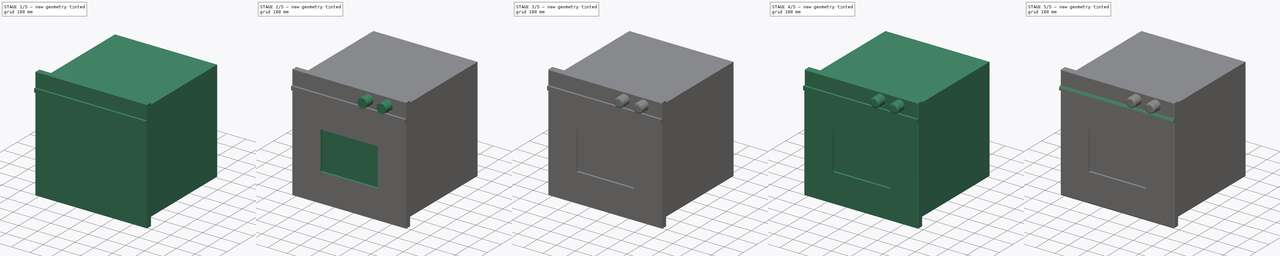
[diagram: build sequence overview — one tinted view per stage of 5, left to right]
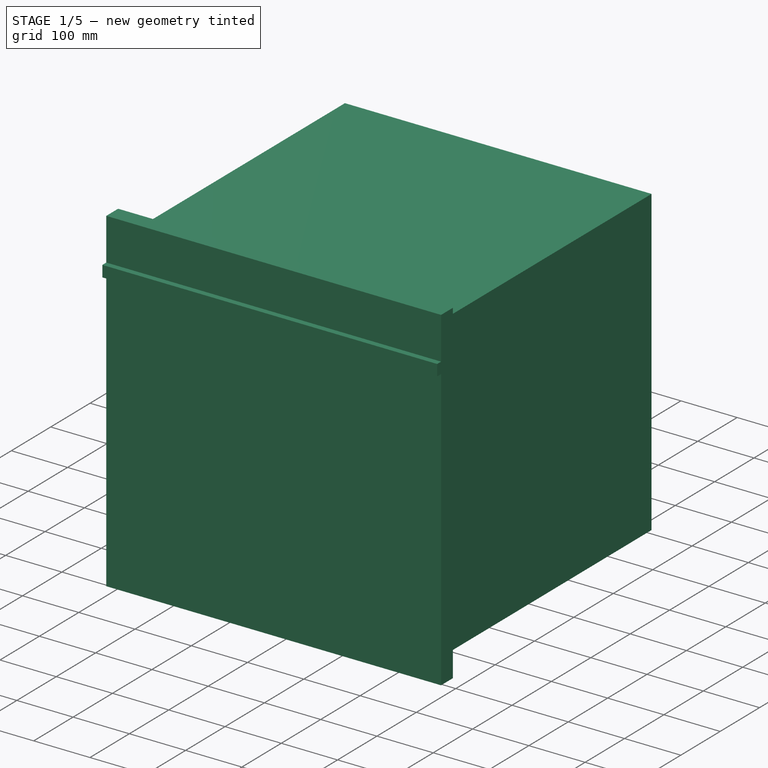
[diagram: stage 1 of 5 — iso view after this stage's code; geometry added in this stage tinted green]
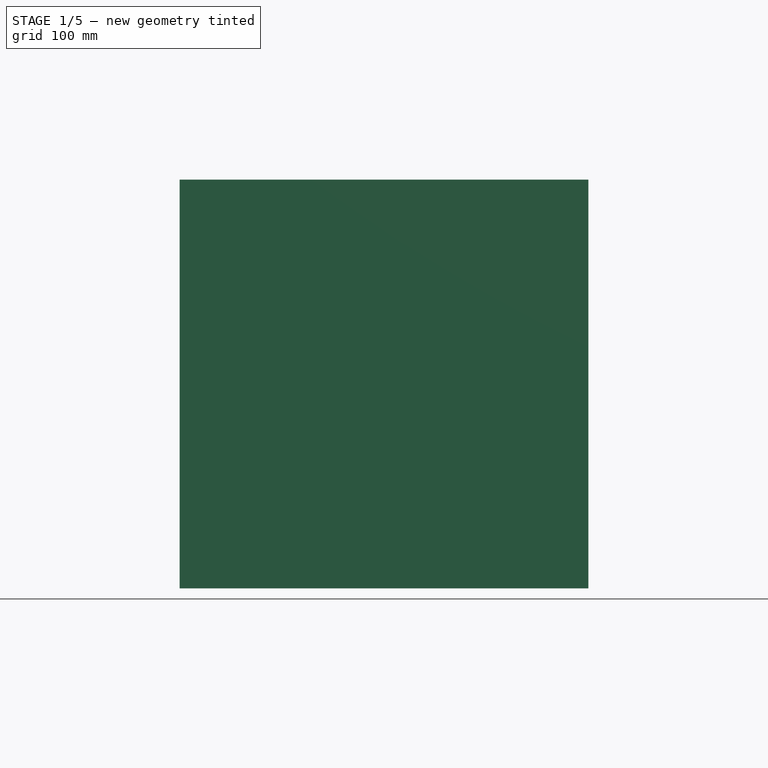
[diagram: stage 1 of 5 — front view after this stage's code; geometry added in this stage tinted green]
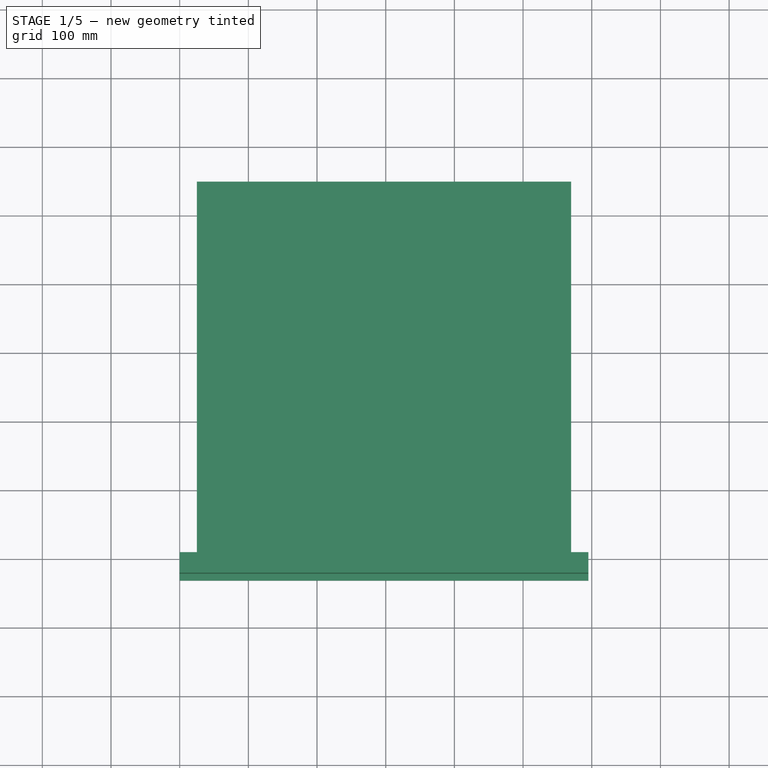
[diagram: stage 1 of 5 — top view after this stage's code; geometry added in this stage tinted green]
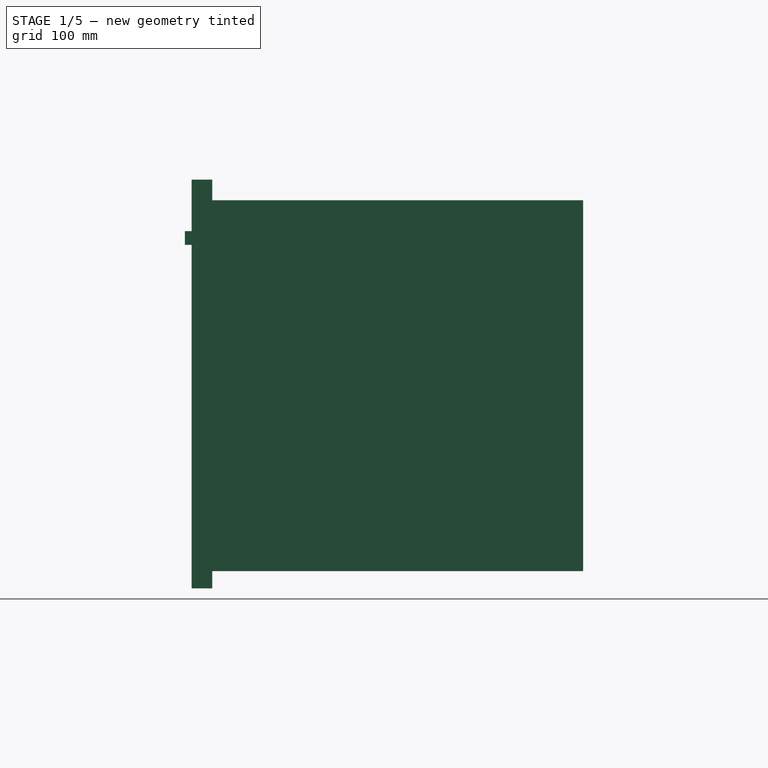
[diagram: stage 1 of 5 — right view after this stage's code; geometry added in this stage tinted green]
FCSTD DOCUMENT  (FreeCAD 0.18R16131 (Git))
Label: Oven_builtIn
License: All rights reserved
LicenseURL: http://en.wikipedia.org/wiki/All_rights_reserved
objects: PartDesign::Fillet×8, Sketcher::SketchObject×6, PartDesign::Pad×5, PartDesign::Pocket×1, PartDesign::Chamfer×1, PartDesign::Body×1
note: 28 computed .brp shape members not serialized (recipe doc carries the construction recipe); baked Part::Feature solids carry a one-line shape summary decoded from their .brp

FEATURE [Sketcher::SketchObject] Sketch
  MapMode = 5
  Placement = pos=(0,0,0) rot=(1,0,0;1.5708rad)
  Support = -> [XZ_Plane]
  sketch-geometry (4):
    g0: LineSegment StartX=0 StartY=0 StartZ=0 EndX=595 EndY=0 EndZ=0
    g1: LineSegment StartX=595 StartY=0 StartZ=0 EndX=595 EndY=595 EndZ=0
    g2: LineSegment StartX=595 StartY=595 StartZ=0 EndX=0 EndY=595 EndZ=0
    g3: LineSegment StartX=0 StartY=595 StartZ=0 EndX=0 EndY=0 EndZ=0
  constraints (11):
    c: Coincident(g0,g1)
    c: Coincident(g1,g2)
    c: Coincident(g2,g3)
    c: Coincident(g3,g0)
    c: Horizontal(g0)
    c: Horizontal(g2)
    c: Vertical(g1)
    c: Vertical(g3)
    c: Coincident(g0,g-1)
    c: DistanceX(g2,g2) = 595
    c: Equal(g3,g2)
FEATURE [PartDesign::Pad] Pad
  Length = 30
  Length2 = 100
  Placement = pos=(0,0,0) rot=(1,0,0;1.5708rad)
  Profile = -> Sketch
  Type = 0
FEATURE [Sketcher::SketchObject] Sketch001
  MapMode = 5
  Placement = pos=(0,6e-16,0) rot=(-1,0,0;1.5708rad)
  Support = -> [Pad]
  sketch-geometry (4):
    g0: LineSegment StartX=25 StartY=-25 StartZ=0 EndX=570 EndY=-25 EndZ=0
    g1: LineSegment StartX=570 StartY=-25 StartZ=0 EndX=570 EndY=-565 EndZ=0
    g2: LineSegment StartX=570 StartY=-565 StartZ=0 EndX=25 EndY=-565 EndZ=0
    g3: LineSegment StartX=25 StartY=-565 StartZ=0 EndX=25 EndY=-25 EndZ=0
  constraints (12):
    c: Coincident(g0,g1)
    c: Coincident(g1,g2)
    c: Coincident(g2,g3)
    c: Coincident(g3,g0)
    c: Horizontal(g0)
    c: Horizontal(g2)
    c: Vertical(g1)
    c: Vertical(g3)
    c: DistanceX(g0,g0) = 545
    c: DistanceY(g3,g3) = 540
    c: DistanceX(g0) = 25
    c: DistanceY(g0) = -25
FEATURE [PartDesign::Pad] Pad001
  BaseFeature = -> Pad
  Length = 540
  Length2 = 100
  Placement = pos=(0,0,0) rot=(1,0,0;1.5708rad)
  Profile = -> Sketch001
  Type = 0
FEATURE [Sketcher::SketchObject] Sketch002
  MapMode = 5
  Placement = pos=(0,-30,1.33e-14) rot=(1,0,0;1.5708rad)
  Support = -> [Pad001]
  sketch-geometry (4):
    g0: LineSegment StartX=0 StartY=520 StartZ=0 EndX=595 EndY=520 EndZ=0
    g1: LineSegment StartX=595 StartY=520 StartZ=0 EndX=595 EndY=500 EndZ=0
    g2: LineSegment StartX=595 StartY=500 StartZ=0 EndX=0 EndY=500 EndZ=0
    g3: LineSegment StartX=0 StartY=500 StartZ=0 EndX=0 EndY=520 EndZ=0
  constraints (12):
    c: Coincident(g0,g1)
    c: Coincident(g1,g2)
    c: Coincident(g2,g3)
    c: Coincident(g3,g0)
    c: Horizontal(g0)
    c: Horizontal(g2)
    c: Vertical(g1)
    c: Vertical(g3)
    c: DistanceY(g3,g3) = 20
    c: DistanceX(g0,g0) = 595
    c: DistanceX(g2) = 0
    c: DistanceY(g2) = 500
FEATURE [PartDesign::Pad] Pad002
  BaseFeature = -> Pad001
  Length = 10
  Length2 = 100
  Placement = pos=(0,0,0) rot=(1,0,0;1.5708rad)
  Profile = -> Sketch002
  Type = 0
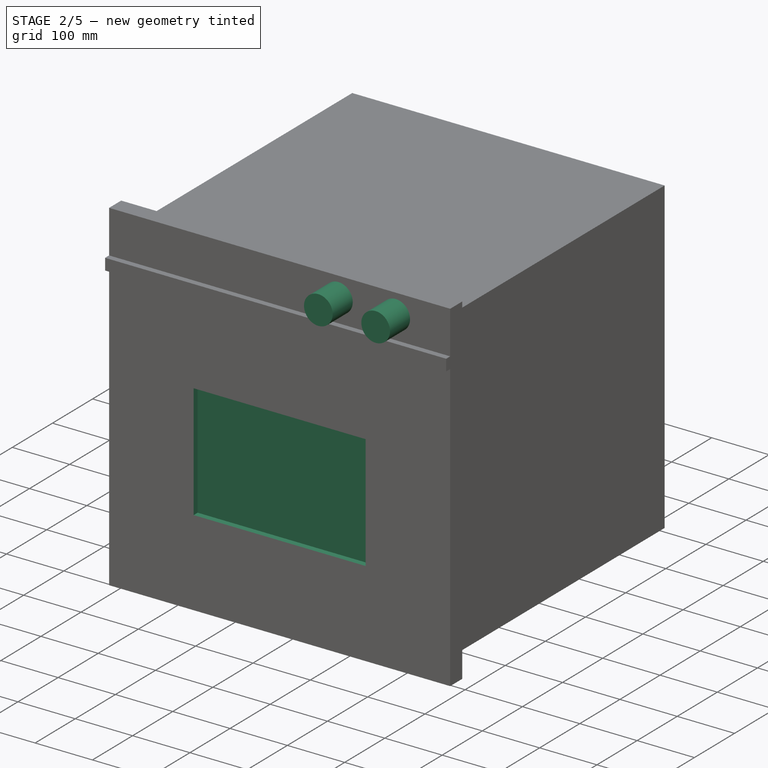
[diagram: stage 2 of 5 — iso view after this stage's code; geometry added in this stage tinted green]
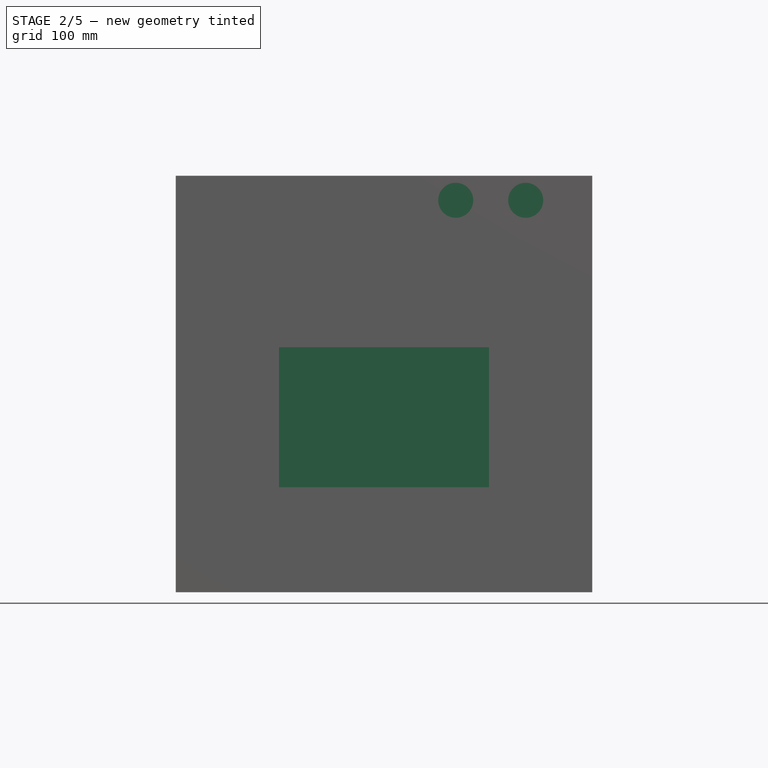
[diagram: stage 2 of 5 — front view after this stage's code; geometry added in this stage tinted green]
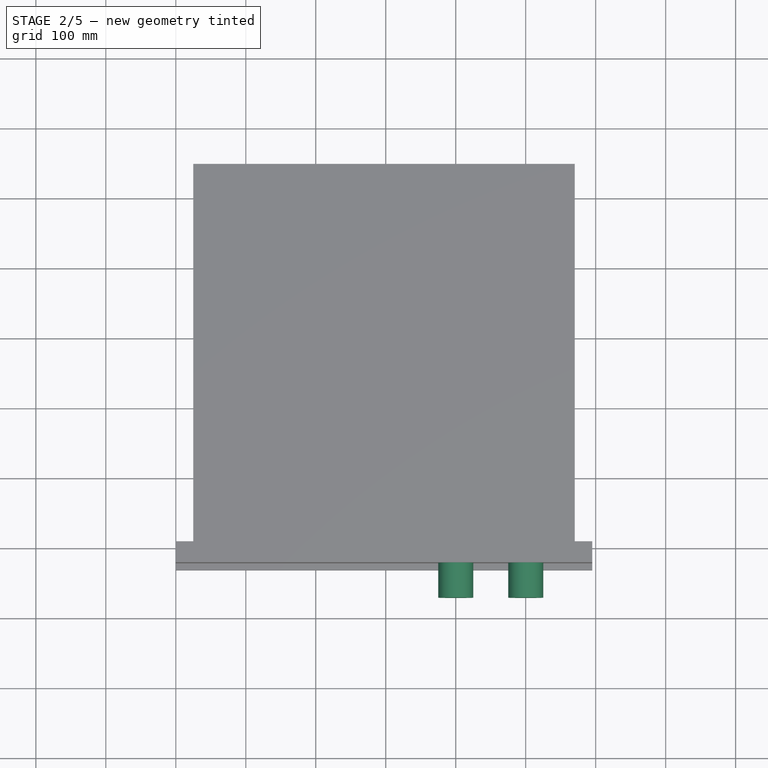
[diagram: stage 2 of 5 — top view after this stage's code; geometry added in this stage tinted green]
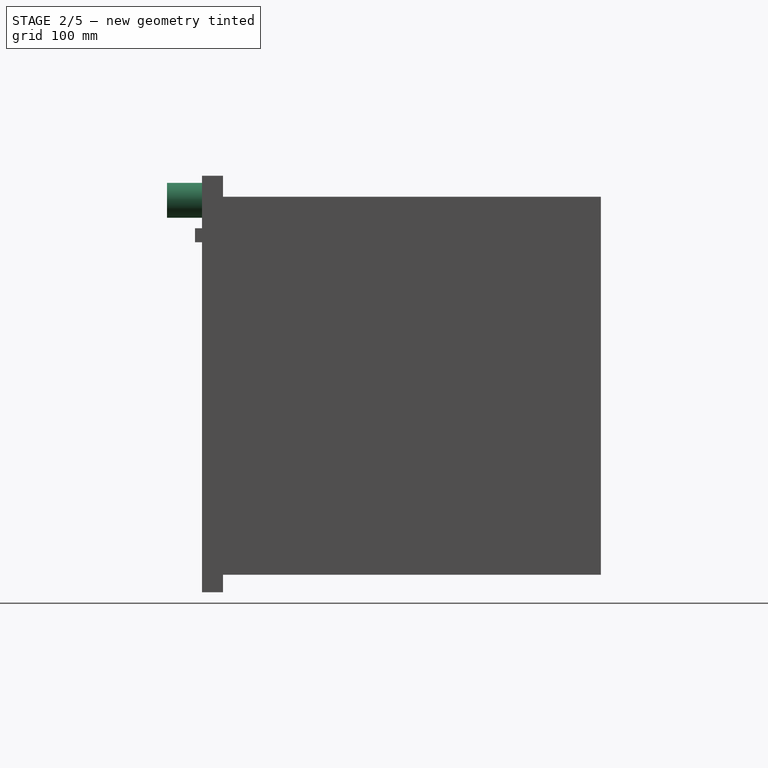
[diagram: stage 2 of 5 — right view after this stage's code; geometry added in this stage tinted green]
FEATURE [Sketcher::SketchObject] Sketch003
  MapMode = 5
  Placement = pos=(0,-30,1.33e-14) rot=(1,0,0;1.5708rad)
  Support = -> [Pad002]
  sketch-geometry (4):
    g0: LineSegment StartX=147.5 StartY=350 StartZ=0 EndX=447.5 EndY=350 EndZ=0
    g1: LineSegment StartX=447.5 StartY=350 StartZ=0 EndX=447.5 EndY=150 EndZ=0
    g2: LineSegment StartX=447.5 StartY=150 StartZ=0 EndX=147.5 EndY=150 EndZ=0
    g3: LineSegment StartX=147.5 StartY=150 StartZ=0 EndX=147.5 EndY=350 EndZ=0
  constraints (12):
    c: Coincident(g0,g1)
    c: Coincident(g1,g2)
    c: Coincident(g2,g3)
    c: Coincident(g3,g0)
    c: Horizontal(g0)
    c: Horizontal(g2)
    c: Vertical(g1)
    c: Vertical(g3)
    c: DistanceX(g2,g2) = 300
    c: DistanceY(g3,g3) = 200
    c: DistanceX(g2) = 147.5
    c: DistanceY(g2) = 150
FEATURE [PartDesign::Pocket] Pocket
  BaseFeature = -> Pad002
  Length = 10
  Length2 = 100
  Placement = pos=(0,0,0) rot=(1,0,0;1.5708rad)
  Profile = -> Sketch003
  Type = 0
FEATURE [Sketcher::SketchObject] Sketch004
  MapMode = 5
  Placement = pos=(0,-30,1.33e-14) rot=(1,0,0;1.5708rad)
  Support = -> [Pocket]
  sketch-geometry (1):
    g0: Circle CenterX=500 CenterY=560 CenterZ=0 NormalX=0 NormalY=0 NormalZ=1 AngleXU=0 Radius=25
  constraints (3):
    c: Radius(g0) = 25
    c: DistanceY(g0) = 560
    c: DistanceX(g0) = 500
FEATURE [PartDesign::Pad] Pad003
  BaseFeature = -> Pocket
  Length = 50
  Length2 = 100
  Placement = pos=(0,0,0) rot=(1,0,0;1.5708rad)
  Profile = -> Sketch004
  Type = 0
FEATURE [Sketcher::SketchObject] Sketch005
  MapMode = 5
  Placement = pos=(0,-30,1.33e-14) rot=(1,0,0;1.5708rad)
  Support = -> [Pad003]
  sketch-geometry (1):
    g0: Circle CenterX=400 CenterY=560 CenterZ=0 NormalX=0 NormalY=0 NormalZ=1 AngleXU=0 Radius=25
  constraints (3):
    c: Radius(g0) = 25
    c: DistanceY(g0) = 560
    c: DistanceX(g0) = 400
FEATURE [PartDesign::Pad] Pad004
  BaseFeature = -> Pad003
  Length = 50
  Length2 = 100
  Placement = pos=(0,0,0) rot=(1,0,0;1.5708rad)
  Profile = -> Sketch005
  Type = 0
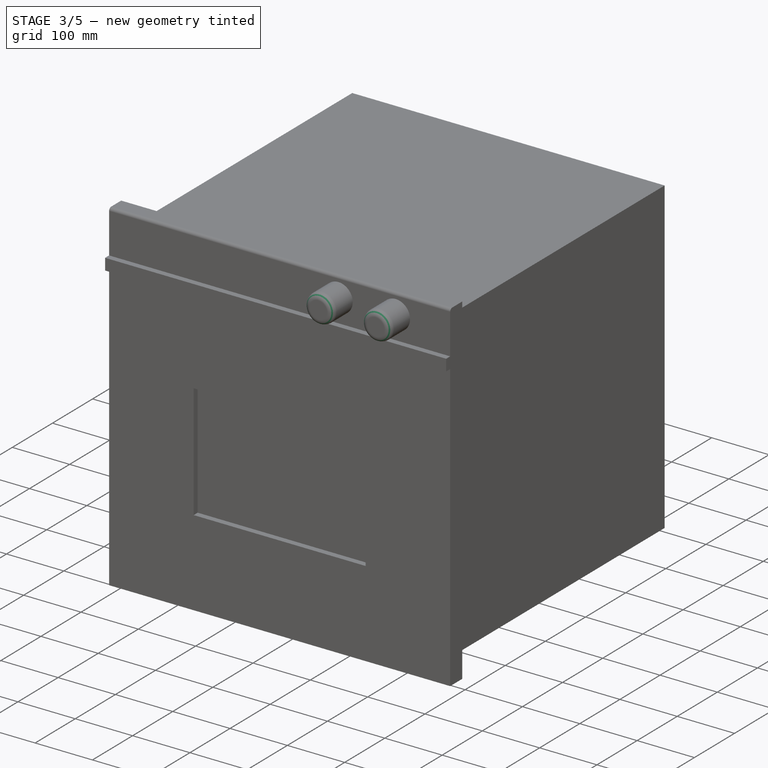
[diagram: stage 3 of 5 — iso view after this stage's code; geometry added in this stage tinted green]
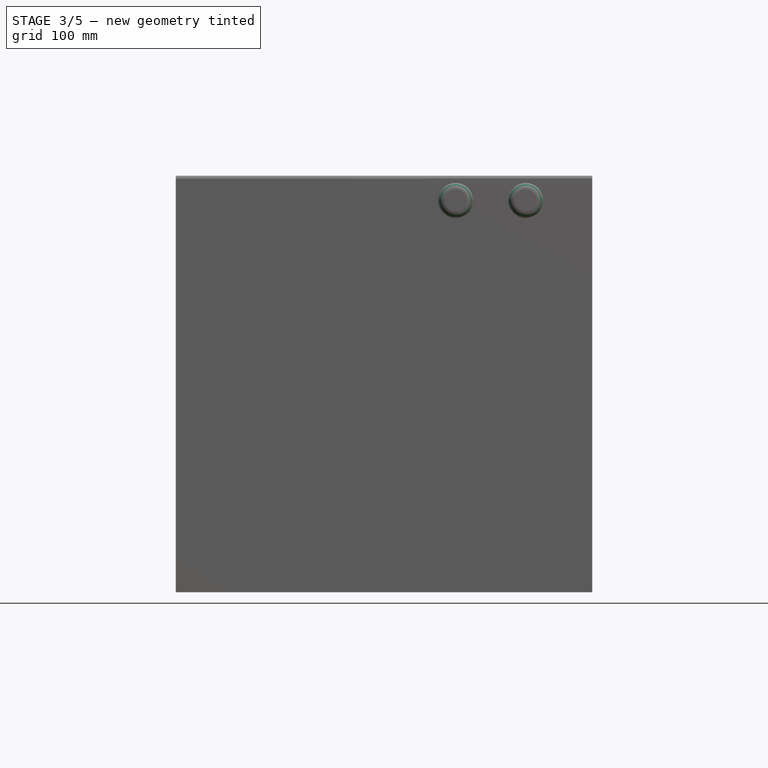
[diagram: stage 3 of 5 — front view after this stage's code; geometry added in this stage tinted green]
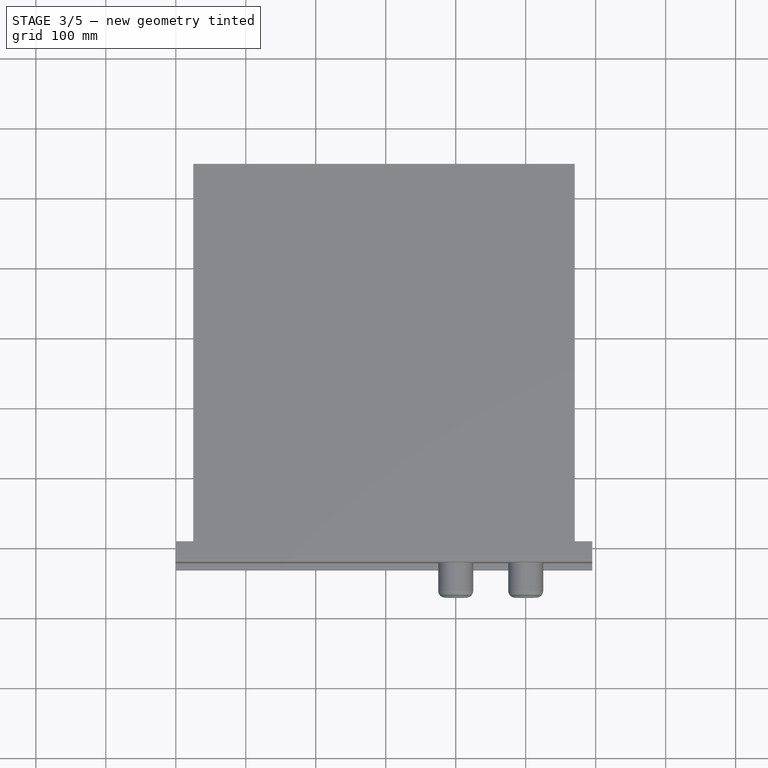
[diagram: stage 3 of 5 — top view after this stage's code; geometry added in this stage tinted green]
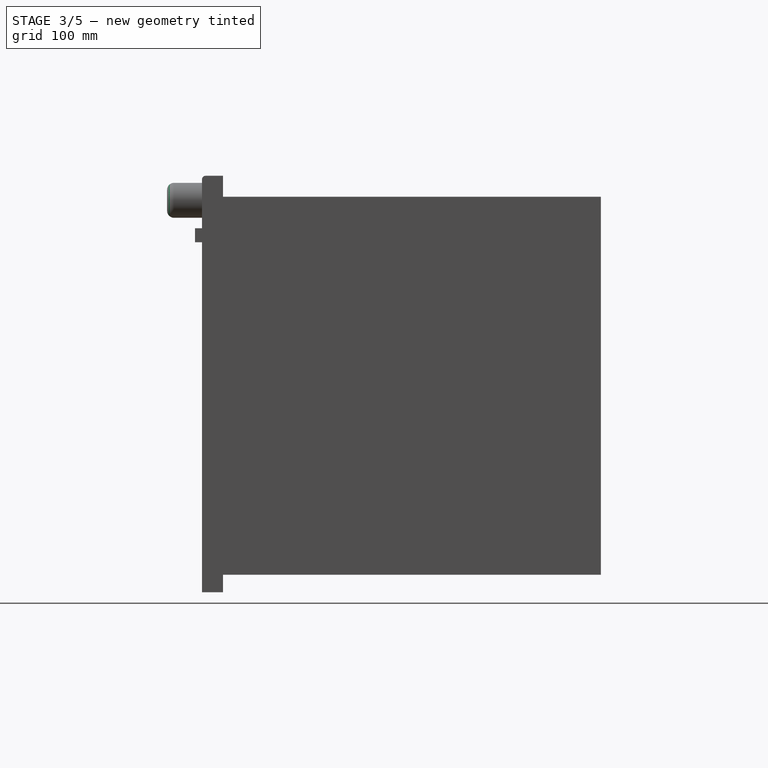
[diagram: stage 3 of 5 — right view after this stage's code; geometry added in this stage tinted green]
FEATURE [PartDesign::Fillet] Fillet
  Base = -> Pad004 [Edge56]
  BaseFeature = -> Pad004
  Placement = pos=(0,0,0) rot=(1,0,0;1.5708rad)
  Radius = 10
FEATURE [PartDesign::Fillet] Fillet001
  Base = -> Fillet [Face16]
  BaseFeature = -> Fillet
  Placement = pos=(0,0,0) rot=(1,0,0;1.5708rad)
  Radius = 10
FEATURE [PartDesign::Fillet] Fillet002
  Base = -> Fillet001 [Edge7]
  BaseFeature = -> Fillet001
  Placement = pos=(0,0,0) rot=(1,0,0;1.5708rad)
  Radius = 5
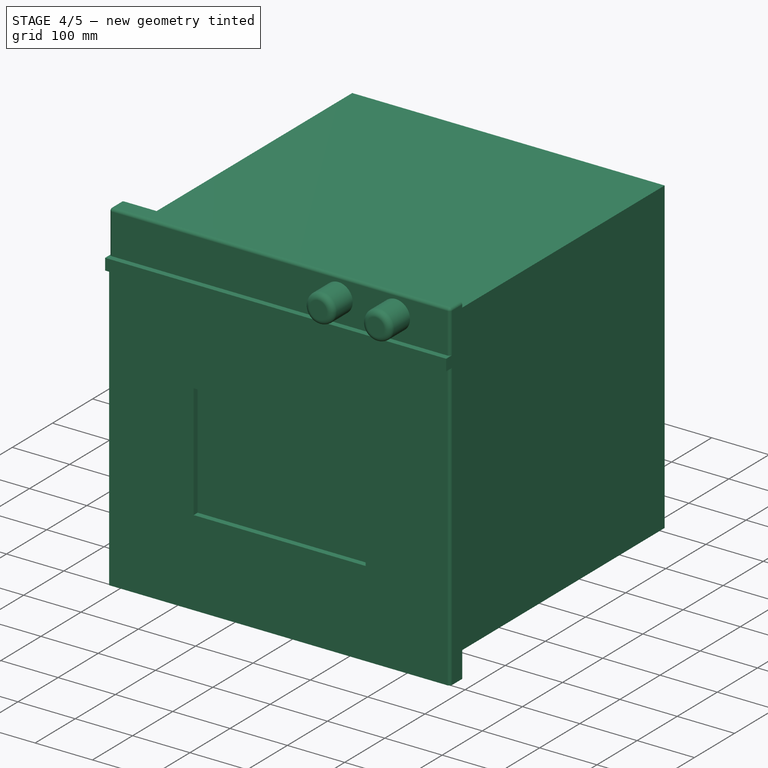
[diagram: stage 4 of 5 — iso view after this stage's code; geometry added in this stage tinted green]
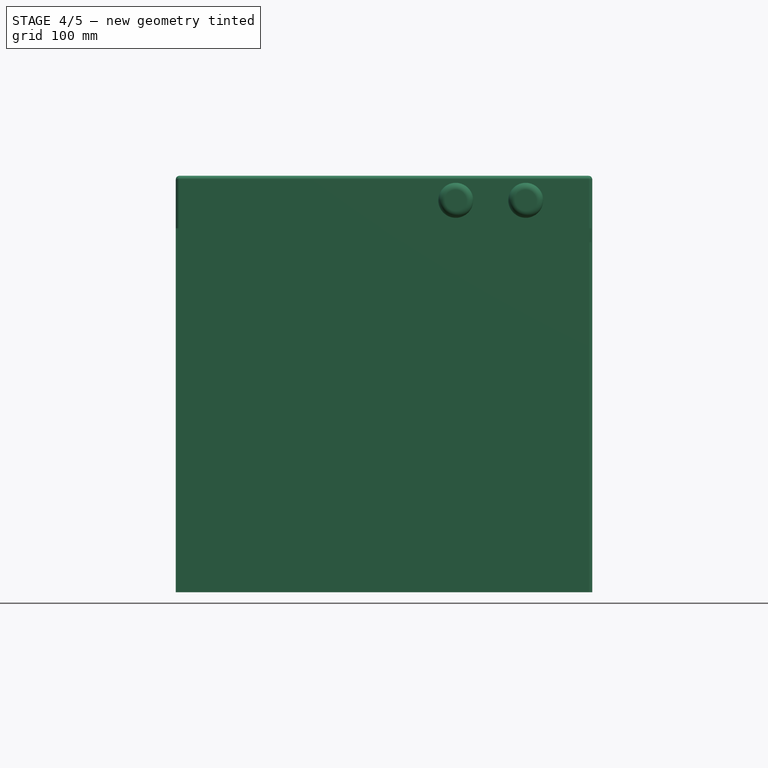
[diagram: stage 4 of 5 — front view after this stage's code; geometry added in this stage tinted green]
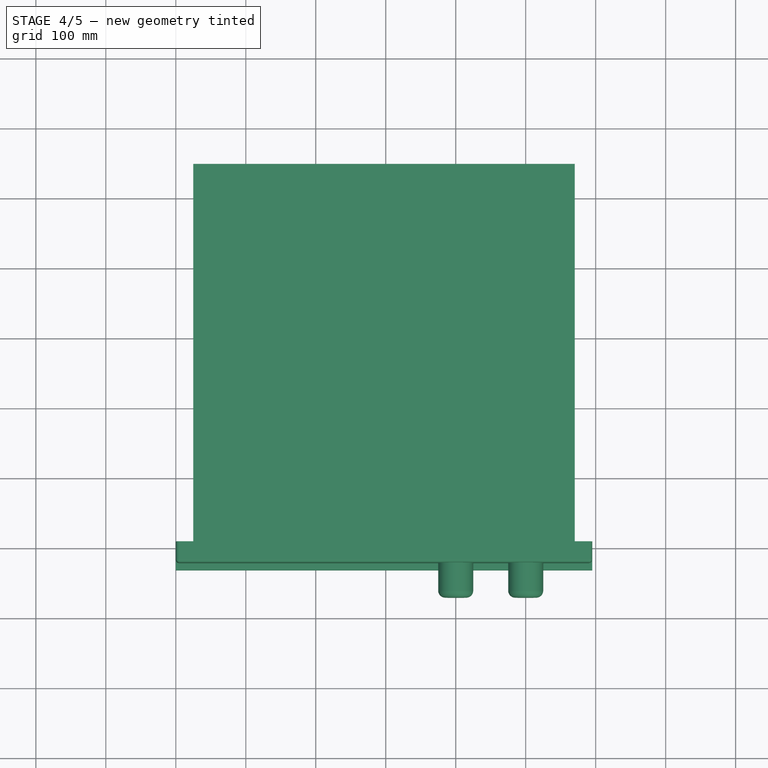
[diagram: stage 4 of 5 — top view after this stage's code; geometry added in this stage tinted green]
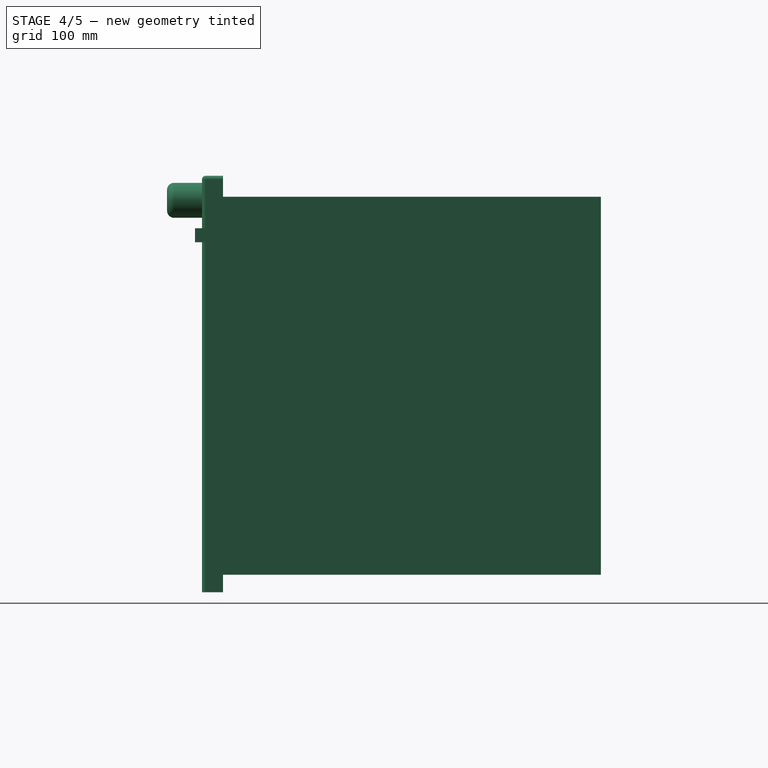
[diagram: stage 4 of 5 — right view after this stage's code; geometry added in this stage tinted green]
FEATURE [PartDesign::Fillet] Fillet003
  Base = -> Fillet002 [Edge22]
  BaseFeature = -> Fillet002
  Placement = pos=(0,0,0) rot=(1,0,0;1.5708rad)
  Radius = 5
FEATURE [PartDesign::Fillet] Fillet004
  Base = -> Fillet003 [Edge8]
  BaseFeature = -> Fillet003
  Placement = pos=(0,0,0) rot=(1,0,0;1.5708rad)
  Radius = 5
FEATURE [PartDesign::Fillet] Fillet005
  Base = -> Fillet004 [Edge39]
  BaseFeature = -> Fillet004
  Placement = pos=(0,0,0) rot=(1,0,0;1.5708rad)
  Radius = 5
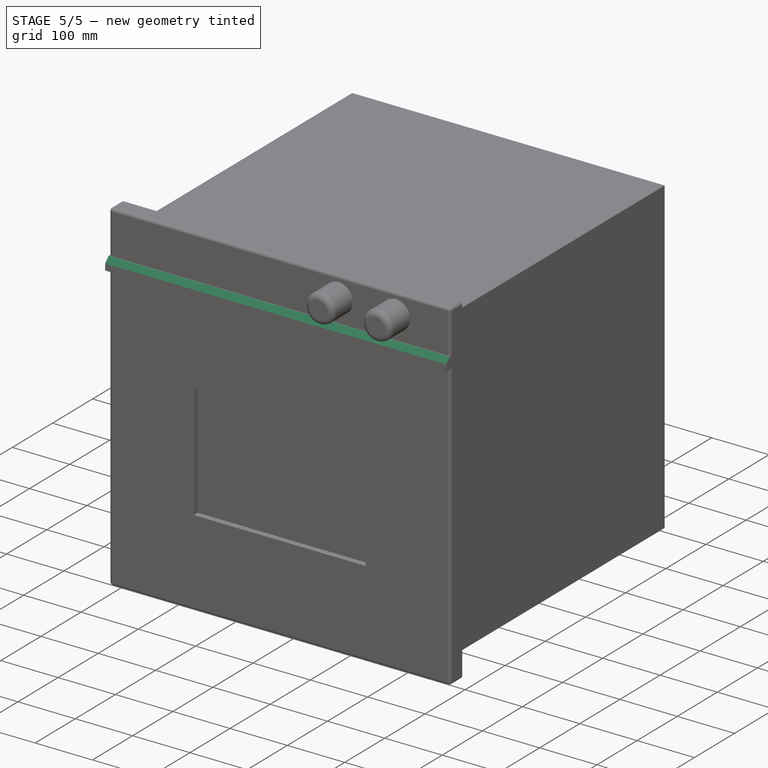
[diagram: stage 5 of 5 — iso view after this stage's code; geometry added in this stage tinted green]
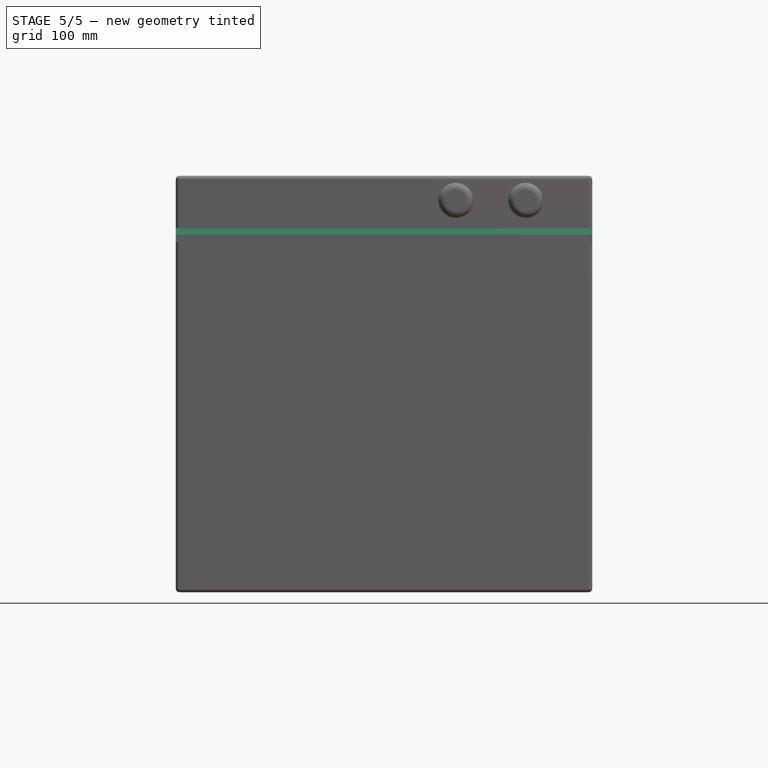
[diagram: stage 5 of 5 — front view after this stage's code; geometry added in this stage tinted green]
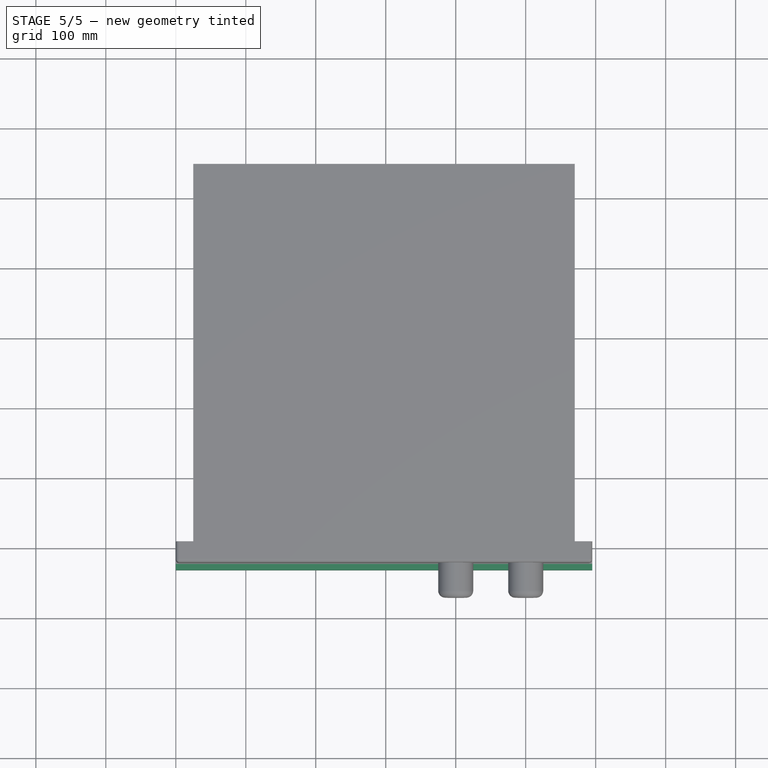
[diagram: stage 5 of 5 — top view after this stage's code; geometry added in this stage tinted green]
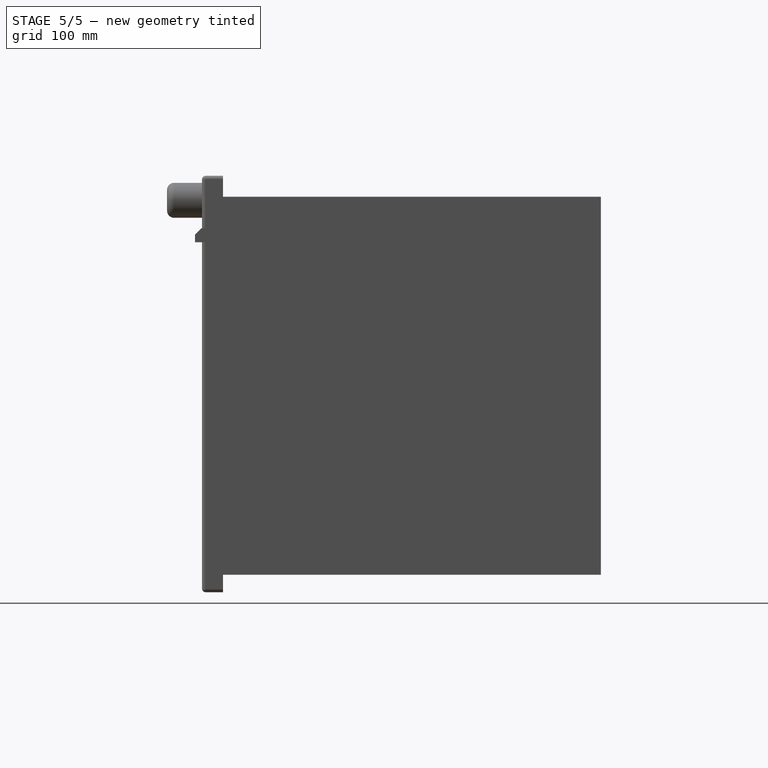
[diagram: stage 5 of 5 — right view after this stage's code; geometry added in this stage tinted green]
FEATURE [PartDesign::Fillet] Fillet006
  Base = -> Fillet005 [Edge20]
  BaseFeature = -> Fillet005
  Placement = pos=(0,0,0) rot=(1,0,0;1.5708rad)
  Radius = 5
FEATURE [PartDesign::Fillet] Fillet007
  Base = -> Fillet006 [Edge10]
  BaseFeature = -> Fillet006
  Placement = pos=(0,0,0) rot=(1,0,0;1.5708rad)
  Radius = 5
FEATURE [PartDesign::Chamfer] Chamfer
  Base = -> Fillet007 [Edge37]
  BaseFeature = -> Fillet007
  Placement = pos=(0,0,0) rot=(1,0,0;1.5708rad)
  Size = 9
FEATURE [PartDesign::Body] Body  label="Oven_builtIn"
  Group = -> [Sketch,Pad,Sketch001,Pad001,Sketch002,Pad002,Sketch003,Pocket,Sketch004,Pad003,Sketch005,Pad004,Fillet,Fillet001,Fillet002,Fillet003,Fillet004,Fillet005,Fillet006,Fillet007,Chamfer]
  Origin = -> Origin
  Tip = -> Chamfer
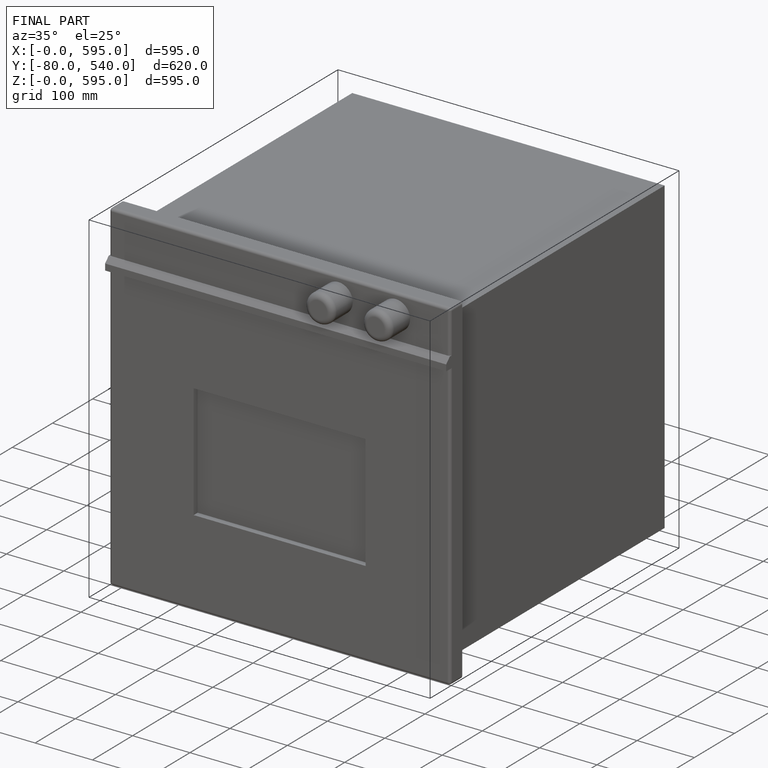
[diagram: finished part — iso view with bounding-box wireframe]
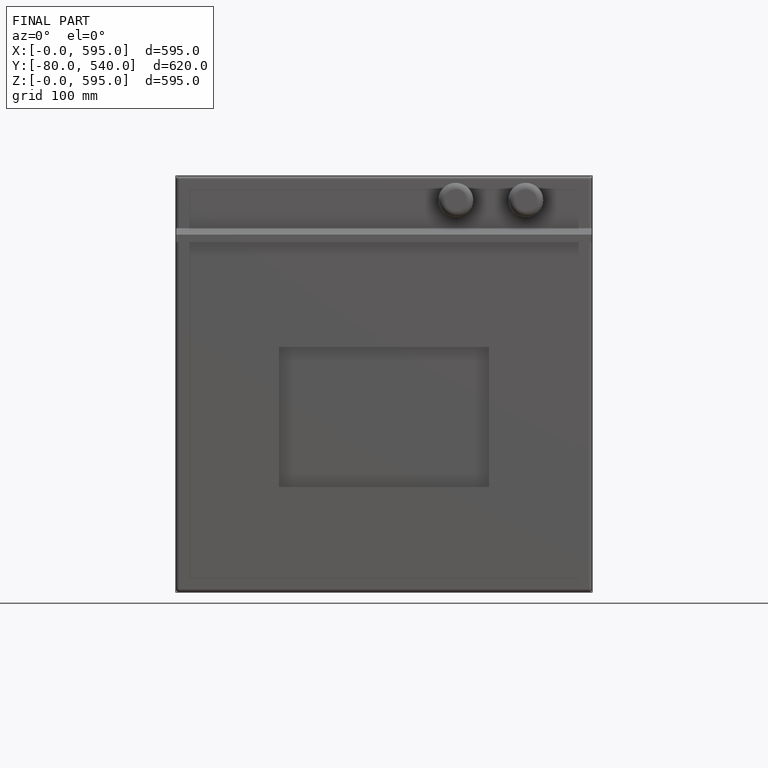
[diagram: finished part — front view with bounding-box wireframe]
